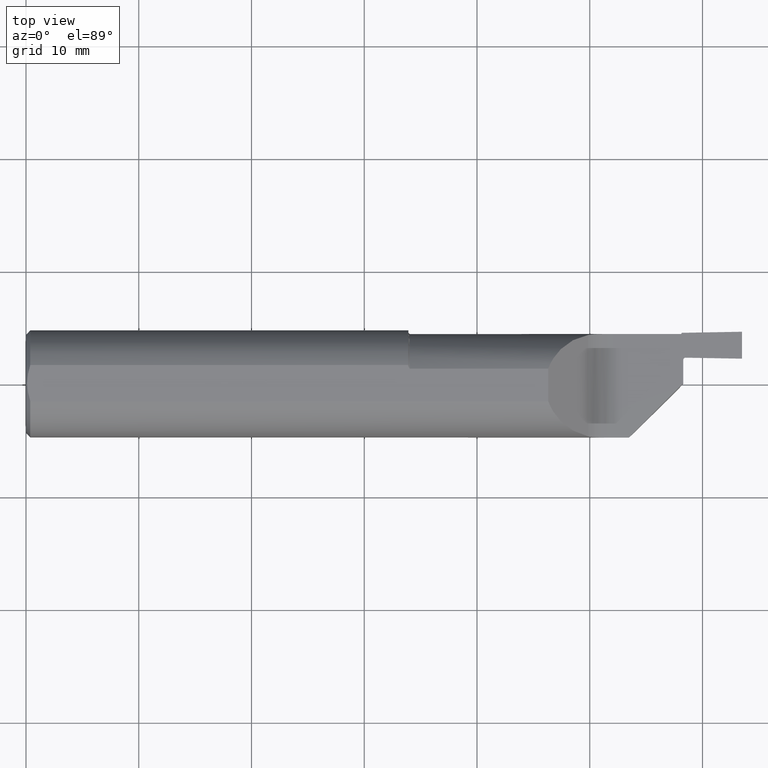
[diagram: clean part render]
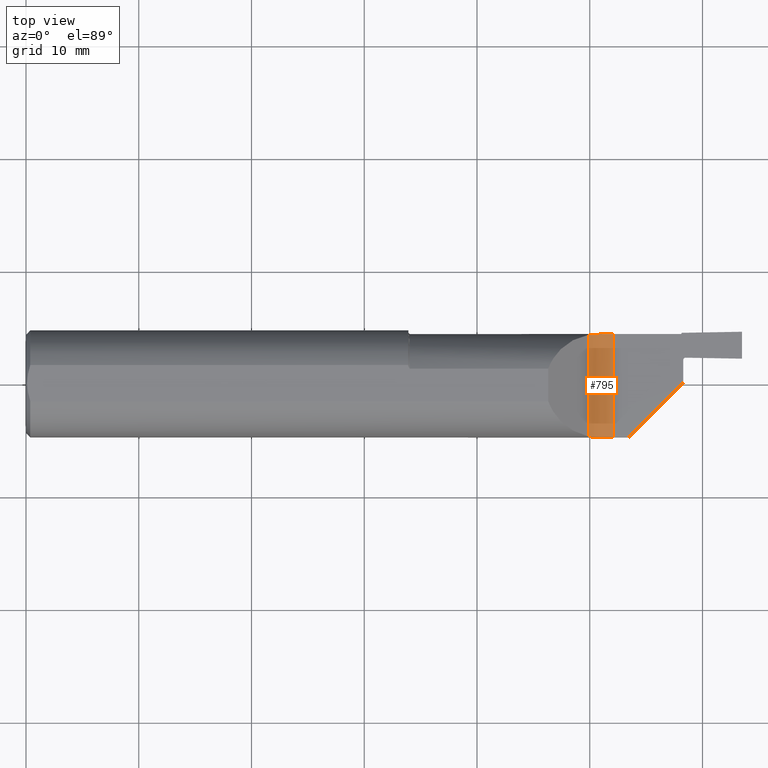
[diagram: same view with one face highlighted and labeled with its STEP entity id]
A machine part, top view. The second image highlights one B-rep face of the part: STEP entity #795.
In plain terms, the highlighted cylindrical surface (edge-blend (fillet) strip) has radius 3.175 mm, axis along (0, 1, 0).
Its self-contained STEP definition (entity closure, byte-faithful):
#15 = VERTEX_POINT ( 'NONE', #755 ) ;
#26 = CARTESIAN_POINT ( 'NONE',  ( 2.035252298051418052, 0.1743543119172814015, 0.0008268482096370590503 ) ) ;
#39 = CARTESIAN_POINT ( 'NONE',  ( 2.051776695296636976, 0.1743492383597802509, 0.000000000000000000 ) ) ;
#99 = CARTESIAN_POINT ( 'NONE',  ( 2.035390929681094807, -0.1873549854116181856, 0.0008110107679984991354 ) ) ;
#133 = DIRECTION ( 'NONE',  ( 0.000000000000000000, 1.000000000000000000, 0.000000000000000000 ) ) ;
#147 = CARTESIAN_POINT ( 'NONE',  ( 2.051776695296636976, 0.2873499999999999943, 0.1250000000000000000 ) ) ;
#151 = DIRECTION ( 'NONE',  ( 0.000000000000000000, 1.000000000000000000, 0.000000000000000000 ) ) ;
#152 = CARTESIAN_POINT ( 'NONE',  ( 1.963388347648318710, 0.1707400671470789832, 0.03661165235168143545 ) ) ;
#175 = EDGE_CURVE ( 'NONE', #732, #594, #540, .T. ) ;
#199 = VERTEX_POINT ( 'NONE', #857 ) ;
#220 = DIRECTION ( 'NONE',  ( -0.000000000000000000, -1.000000000000000000, -0.000000000000000000 ) ) ;
#226 = AXIS2_PLACEMENT_3D ( 'NONE', #147, #151, #819 ) ;
#334 = EDGE_CURVE ( 'NONE', #594, #199, #535, .T. ) ;
#354 = CARTESIAN_POINT ( 'NONE',  ( 1.975456747076115072, 0.1726394736848242961, 0.02567045653326194277 ) ) ;
#358 = CARTESIAN_POINT ( 'NONE',  ( 2.019197208109889896, 0.1743125433629942322, 0.004042964882075219743 ) ) ;
#360 = B_SPLINE_CURVE_WITH_KNOTS ( 'NONE', 3,
 ( #152, #552, #354, #614, #549, #822, #358, #26, #827, #39 ),
 .UNSPECIFIED., .F., .F.,
 ( 4, 2, 2, 2, 4 ),
 ( 0.000000000000000000, 0.0006203411018093673082, 0.001240682203618734616, 0.001861023305428101925, 0.002481364407237469233 ),
 .UNSPECIFIED. ) ;
#364 = CARTESIAN_POINT ( 'NONE',  ( 2.051776695296636976, -0.1873499999999999888, 0.000000000000000000 ) ) ;
#368 = CARTESIAN_POINT ( 'NONE',  ( 1.996326790910569082, -0.1869473204897925123, 0.01267266404239195815 ) ) ;
#372 = CARTESIAN_POINT ( 'NONE',  ( 2.011462618758882659, -0.1872671557635287864, 0.006396047567269131165 ) ) ;
#377 = CARTESIAN_POINT ( 'NONE',  ( 2.019406815221594709, -0.1873142647345006628, 0.003989301195303232572 ) ) ;
#396 = EDGE_CURVE ( 'NONE', #199, #15, #360, .T. ) ;
#410 = ORIENTED_EDGE ( 'NONE', *, *, #334, .F. ) ;
#535 = LINE ( 'NONE', #799, #820 ) ;
#540 = B_SPLINE_CURVE_WITH_KNOTS ( 'NONE', 3,
 ( #706, #844, #99, #377, #372, #368, #569, #776, #711, #640 ),
 .UNSPECIFIED., .F., .F.,
 ( 4, 2, 2, 2, 4 ),
 ( 0.000000000000000000, 0.0006206708188418187102, 0.001241341637683637420, 0.001862012456525456022, 0.002482683275367274841 ),
 .UNSPECIFIED. ) ;
#544 = LINE ( 'NONE', #551, #782 ) ;
#548 = CYLINDRICAL_SURFACE ( 'NONE', #226, 0.1250000000000000000 ) ;
#549 = CARTESIAN_POINT ( 'NONE',  ( 1.996282164411133930, 0.1739453693091477793, 0.01269519059421282334 ) ) ;
#551 = CARTESIAN_POINT ( 'NONE',  ( 2.051776695296636976, -0.2873499999999999943, 0.000000000000000000 ) ) ;
#552 = CARTESIAN_POINT ( 'NONE',  ( 1.969175886172399359, 0.1718923342275689159, 0.03082411382760027324 ) ) ;
#569 = CARTESIAN_POINT ( 'NONE',  ( 1.989151228518893477, -0.1866765615736736272, 0.01651232730745808355 ) ) ;
#594 = VERTEX_POINT ( 'NONE', #861 ) ;
#614 = CARTESIAN_POINT ( 'NONE',  ( 1.988965638552542048, 0.1736665399885004013, 0.01662166336216466464 ) ) ;
#640 = CARTESIAN_POINT ( 'NONE',  ( 1.963388347648318932, -0.1837378823544007778, 0.03661165235168151871 ) ) ;
#706 = CARTESIAN_POINT ( 'NONE',  ( 2.051776695296636976, -0.1873499999999999888, 0.000000000000000000 ) ) ;
#711 = CARTESIAN_POINT ( 'NONE',  ( 1.969176586392017869, -0.1848912481268661367, 0.03082341360798270674 ) ) ;
#732 = VERTEX_POINT ( 'NONE', #364 ) ;
#747 = FACE_OUTER_BOUND ( 'NONE', #864, .T. ) ;
#755 = CARTESIAN_POINT ( 'NONE',  ( 2.051776695296636976, 0.1743492383597802509, 0.000000000000000000 ) ) ;
#765 = ORIENTED_EDGE ( 'NONE', *, *, #396, .F. ) ;
#776 = CARTESIAN_POINT ( 'NONE',  ( 1.975584630924563934, -0.1856528012981897013, 0.02557015768846747708 ) ) ;
#782 = VECTOR ( 'NONE', #220, 39.37007874015748143 ) ;
#795 = ADVANCED_FACE ( 'NONE', ( #747 ), #548, .F. ) ;
#799 = CARTESIAN_POINT ( 'NONE',  ( 1.963388347648318932, 0.2873499999999999943, 0.03661165235168144932 ) ) ;
#818 = ORIENTED_EDGE ( 'NONE', *, *, #823, .F. ) ;
#819 = DIRECTION ( 'NONE',  ( 0.000000000000000000, 0.000000000000000000, 1.000000000000000000 ) ) ;
#820 = VECTOR ( 'NONE', #133, 39.37007874015748143 ) ;
#822 = CARTESIAN_POINT ( 'NONE',  ( 2.011402846495882635, 0.1742657643842317194, 0.006416841385945341175 ) ) ;
#823 = EDGE_CURVE ( 'NONE', #15, #732, #544, .T. ) ;
#827 = CARTESIAN_POINT ( 'NONE',  ( 2.043518208465806119, 0.1743492383597802786, 2.547768392528682318E-17 ) ) ;
#844 = CARTESIAN_POINT ( 'NONE',  ( 2.043515043950825838, -0.1873499999999999888, 3.001297844601850477E-19 ) ) ;
#857 = CARTESIAN_POINT ( 'NONE',  ( 1.963388347648318710, 0.1707400671470789832, 0.03661165235168143545 ) ) ;
#858 = ORIENTED_EDGE ( 'NONE', *, *, #175, .F. ) ;
#861 = CARTESIAN_POINT ( 'NONE',  ( 1.963388347648318932, -0.1837378823544007778, 0.03661165235168151871 ) ) ;
#864 = EDGE_LOOP ( 'NONE', ( #765, #410, #858, #818 ) ) ;